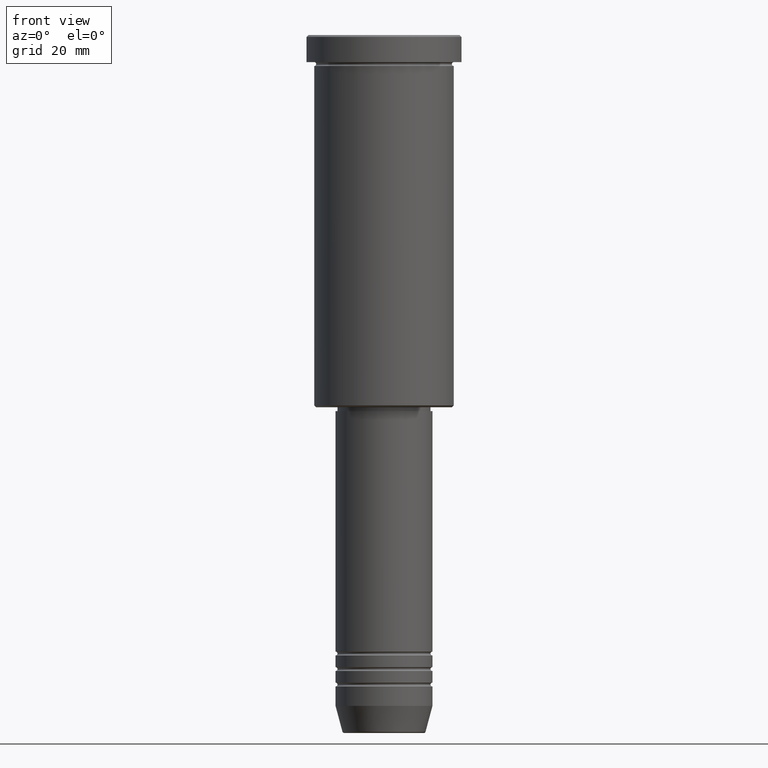
[diagram: clean part render]
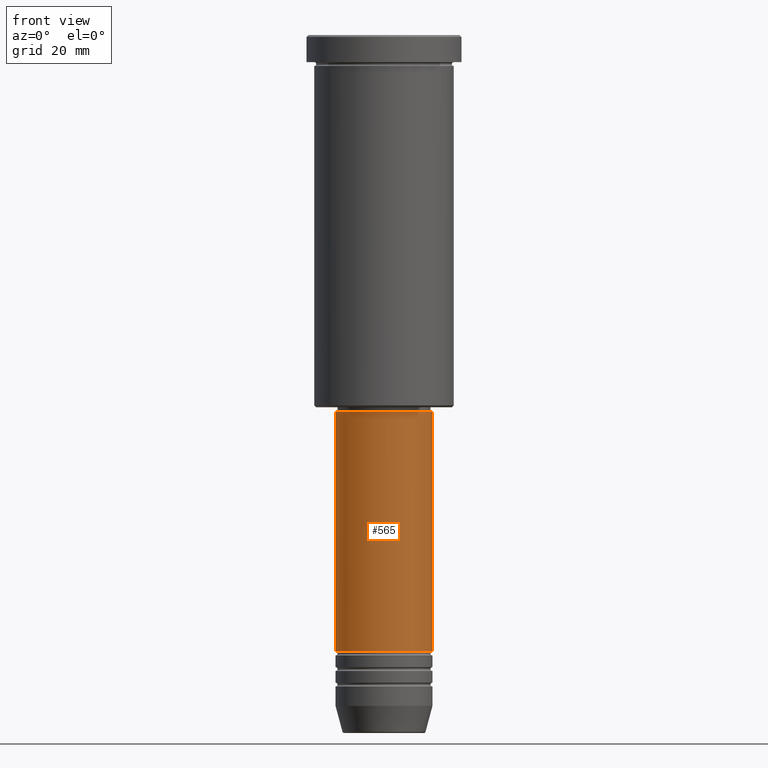
[diagram: same view with one face highlighted and labeled with its STEP entity id]
A machine part, front view. The second image highlights one B-rep face of the part: STEP entity #565.
In plain terms, the highlighted cylindrical surface (partial cylindrical patch) has radius 12.5 mm, axis along (-0, -0, 1).
Its self-contained STEP definition (entity closure, byte-faithful):
#3 = DIRECTION ( 'NONE',  ( 1.000000000000000000, 0.000000000000000000, 0.000000000000000000 ) ) ;
#17 = VERTEX_POINT ( 'NONE', #422 ) ;
#52 = DIRECTION ( 'NONE',  ( 1.000000000000000000, 0.000000000000000000, 0.000000000000000000 ) ) ;
#55 = VERTEX_POINT ( 'NONE', #611 ) ;
#63 = DIRECTION ( 'NONE',  ( -0.000000000000000000, -0.000000000000000000, 1.000000000000000000 ) ) ;
#72 = ORIENTED_EDGE ( 'NONE', *, *, #275, .F. ) ;
#146 = VECTOR ( 'NONE', #723, 1000.000000000000000 ) ;
#207 = VERTEX_POINT ( 'NONE', #732 ) ;
#244 = CIRCLE ( 'NONE', #497, 12.50000000000000000 ) ;
#259 = ORIENTED_EDGE ( 'NONE', *, *, #433, .T. ) ;
#275 = EDGE_CURVE ( 'NONE', #55, #331, #590, .T. ) ;
#310 = CARTESIAN_POINT ( 'NONE',  ( 12.50000000000000000, 0.000000000000000000, -97.00000000000002842 ) ) ;
#331 = VERTEX_POINT ( 'NONE', #310 ) ;
#392 = VECTOR ( 'NONE', #707, 1000.000000000000000 ) ;
#422 = CARTESIAN_POINT ( 'NONE',  ( 12.50000000000000000, 0.000000000000000000, -159.0000000000000000 ) ) ;
#433 = EDGE_CURVE ( 'NONE', #207, #17, #244, .T. ) ;
#448 = FACE_OUTER_BOUND ( 'NONE', #868, .T. ) ;
#497 = AXIS2_PLACEMENT_3D ( 'NONE', #1129, #689, #507 ) ;
#507 = DIRECTION ( 'NONE',  ( 1.000000000000000000, 0.000000000000000000, 0.000000000000000000 ) ) ;
#515 = AXIS2_PLACEMENT_3D ( 'NONE', #737, #928, #3 ) ;
#517 = ORIENTED_EDGE ( 'NONE', *, *, #982, .T. ) ;
#537 = AXIS2_PLACEMENT_3D ( 'NONE', #721, #63, #52 ) ;
#565 = ADVANCED_FACE ( 'NONE', ( #448 ), #629, .T. ) ;
#590 = CIRCLE ( 'NONE', #515, 12.50000000000000000 ) ;
#611 = CARTESIAN_POINT ( 'NONE',  ( -12.50000000000000000, 1.530808498934191521E-15, -97.00000000000002842 ) ) ;
#629 = CYLINDRICAL_SURFACE ( 'NONE', #537, 12.50000000000000000 ) ;
#633 = LINE ( 'NONE', #717, #146 ) ;
#689 = DIRECTION ( 'NONE',  ( -0.000000000000000000, -0.000000000000000000, 1.000000000000000000 ) ) ;
#707 = DIRECTION ( 'NONE',  ( -0.000000000000000000, -0.000000000000000000, 1.000000000000000000 ) ) ;
#717 = CARTESIAN_POINT ( 'NONE',  ( -12.50000000000000000, 1.530808498934191521E-15, 0.000000000000000000 ) ) ;
#721 = CARTESIAN_POINT ( 'NONE',  ( 0.000000000000000000, 0.000000000000000000, 0.000000000000000000 ) ) ;
#723 = DIRECTION ( 'NONE',  ( -0.000000000000000000, -0.000000000000000000, 1.000000000000000000 ) ) ;
#732 = CARTESIAN_POINT ( 'NONE',  ( -12.50000000000000000, 1.530808498934191521E-15, -159.0000000000000000 ) ) ;
#737 = CARTESIAN_POINT ( 'NONE',  ( 0.000000000000000000, 0.000000000000000000, -97.00000000000002842 ) ) ;
#868 = EDGE_LOOP ( 'NONE', ( #996, #259, #517, #72 ) ) ;
#928 = DIRECTION ( 'NONE',  ( -0.000000000000000000, -0.000000000000000000, 1.000000000000000000 ) ) ;
#974 = LINE ( 'NONE', #1153, #392 ) ;
#982 = EDGE_CURVE ( 'NONE', #17, #331, #974, .T. ) ;
#996 = ORIENTED_EDGE ( 'NONE', *, *, #1182, .F. ) ;
#1129 = CARTESIAN_POINT ( 'NONE',  ( 0.000000000000000000, 0.000000000000000000, -159.0000000000000000 ) ) ;
#1153 = CARTESIAN_POINT ( 'NONE',  ( 12.50000000000000000, 0.000000000000000000, 0.000000000000000000 ) ) ;
#1182 = EDGE_CURVE ( 'NONE', #207, #55, #633, .T. ) ;